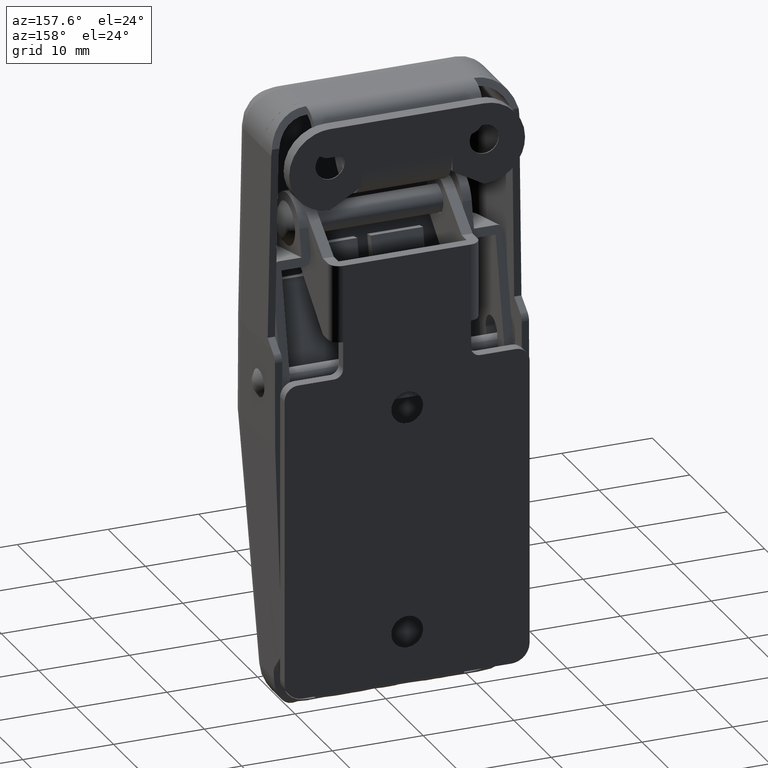
[diagram: clean part render]
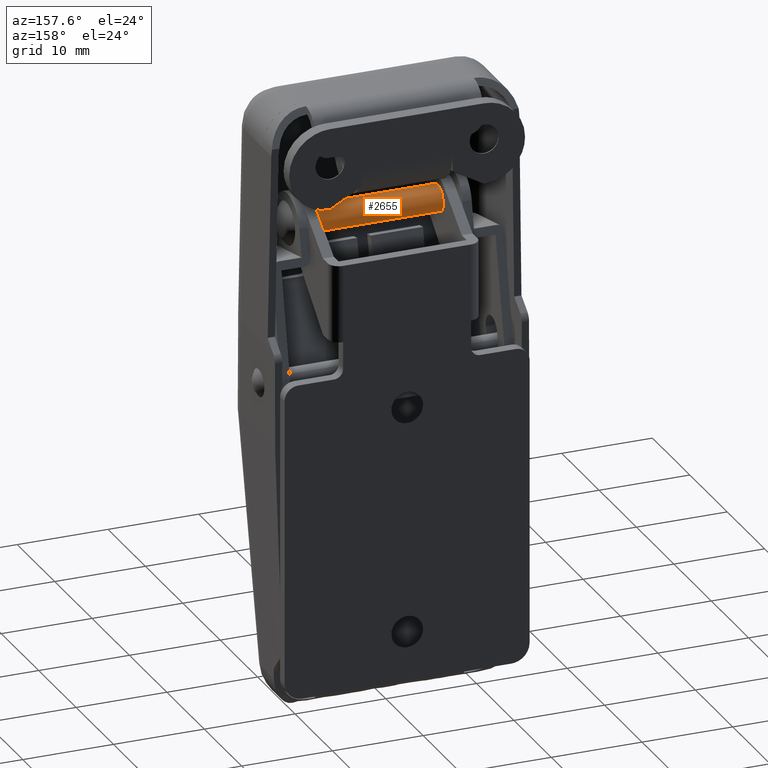
[diagram: same view with one face highlighted and labeled with its STEP entity id]
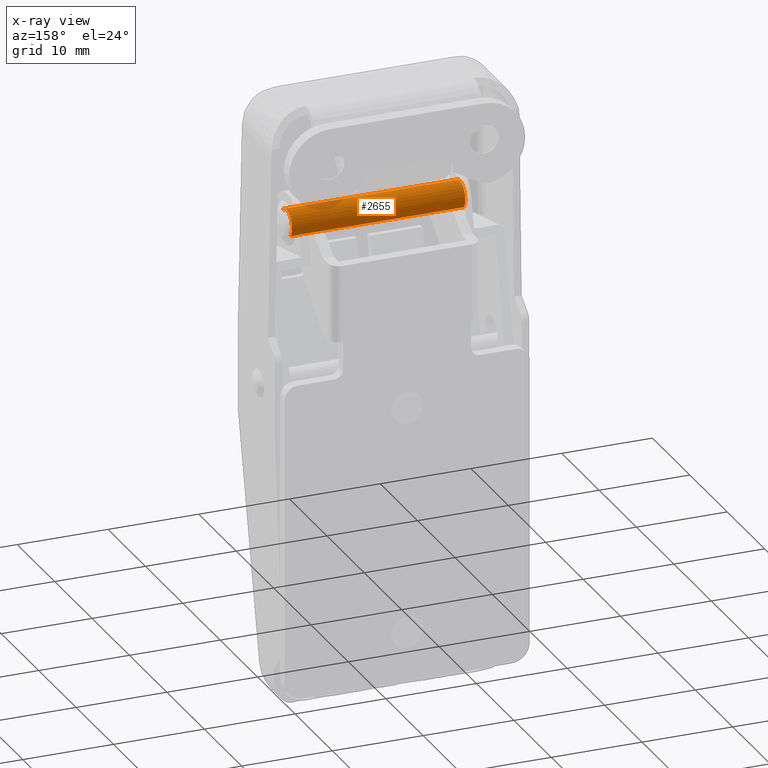
[diagram: x-ray of the same camera — body ghosted, the highlighted face saturated]
A machine part, auxiliary view. The second image highlights one B-rep face of the part: STEP entity #2655.
The next image is the same camera in x-ray: the body ghosted, the highlighted face saturated — about 4% of this face is hidden behind the body in this view.
In plain terms, the highlighted face is a freeform B-spline surface patch.
Its self-contained STEP definition (entity closure, byte-faithful):
#2454=CARTESIAN_POINT('',(-9.499999999934200,-3.285633986032510,22.178790868861189));
#2455=VERTEX_POINT('',#2454);
#2456=CARTESIAN_POINT('',(-9.499999999934200,-1.785633985957821,20.678790915992419));
#2457=VERTEX_POINT('',#2456);
#2458=CARTESIAN_POINT('',(-9.499999999934200,-3.285633986032510,22.178790868861189));
#2459=CARTESIAN_POINT('',(-9.499999999934202,-3.101523840343589,22.178953196326798));
#2460=CARTESIAN_POINT('',(-9.499999999934206,-2.819419191676042,22.126139130698451));
#2461=CARTESIAN_POINT('',(-9.499999999934216,-2.433878845741575,21.932098984238461));
#2462=CARTESIAN_POINT('',(-9.499999999934179,-2.170875079340385,21.705234986768090));
#2463=CARTESIAN_POINT('',(-9.499999999934220,-1.972096145615222,21.422909043485451));
#2464=CARTESIAN_POINT('',(-9.499999999934186,-1.827164079112032,21.095980703721811));
#2465=CARTESIAN_POINT('',(-9.499999999934213,-1.785534220851482,20.838338322912040));
#2466=CARTESIAN_POINT('',(-9.499999999934200,-1.785633985957821,20.678790915992419));
#2467=B_SPLINE_CURVE_WITH_KNOTS('',3,(#2458,#2459,#2460,#2461,#2462,#2463,#2464,#2465,#2466),.UNSPECIFIED.,.F.,.U.,(4,1,1,1,1,1,4),(0.000000082022260,0.552246338075214,0.846781946795954,1.288555580415389,1.583099460860267,1.877644930063315,2.356253590015370),.UNSPECIFIED.);
#2468=EDGE_CURVE('',#2455,#2457,#2467,.T.);
#2470=CARTESIAN_POINT('',(-9.499999999934165,-2.197572421499889,19.646259031128611));
#2471=VERTEX_POINT('',#2470);
#2472=CARTESIAN_POINT('',(-9.499999999934200,-1.785633985957821,20.678790915992419));
#2473=CARTESIAN_POINT('',(-9.499999999934197,-1.785489143771432,20.500827777173480));
#2474=CARTESIAN_POINT('',(-9.499999999934168,-1.854039233733375,20.121338672274788));
#2475=CARTESIAN_POINT('',(-9.499999999934182,-2.058542988621209,19.792400366430240));
#2476=CARTESIAN_POINT('',(-9.499999999934165,-2.197572421499889,19.646259031128611));
#2477=B_SPLINE_CURVE_WITH_KNOTS('',3,(#2472,#2473,#2474,#2475,#2476),.UNSPECIFIED.,.F.,.U.,(4,1,4),(0.000000022170456,0.533842892879499,1.138854059767012),.UNSPECIFIED.);
#2478=EDGE_CURVE('',#2457,#2471,#2477,.T.);
#2505=CARTESIAN_POINT('',(-9.499999999934165,-4.373695550565131,21.711322706444388));
#2506=VERTEX_POINT('',#2505);
#2515=CARTESIAN_POINT('',(-9.499999999934165,-4.373695550565131,21.711322706444388));
#2516=CARTESIAN_POINT('',(-9.499999999934156,-4.303873325916835,21.784918970288231));
#2517=CARTESIAN_POINT('',(-9.499999999934191,-4.139553173976664,21.926168247356259));
#2518=CARTESIAN_POINT('',(-9.499999999934151,-3.780076682515530,22.120092399112782));
#2519=CARTESIAN_POINT('',(-9.499999999934254,-3.475877977551342,22.178977339723360));
#2520=CARTESIAN_POINT('',(-9.499999999934200,-3.285633986032510,22.178790868861189));
#2521=B_SPLINE_CURVE_WITH_KNOTS('',3,(#2515,#2516,#2517,#2518,#2519,#2520),.UNSPECIFIED.,.F.,.U.,(4,1,1,4),(0.000000019230499,0.304349962171008,0.646740907472440,1.217399790996567),.UNSPECIFIED.);
#2522=EDGE_CURVE('',#2506,#2455,#2521,.T.);
#2546=CARTESIAN_POINT('',(9.600000000012580,-2.197572422130067,19.646259031314681));
#2547=VERTEX_POINT('',#2546);
#2548=CARTESIAN_POINT('',(9.600000000012580,-2.197572422130067,19.646259031314681));
#2549=CARTESIAN_POINT('',(-9.499999999934165,-2.197572421499889,19.646259031128611));
#2550=QUASI_UNIFORM_CURVE('',1,(#2548,#2549),.UNSPECIFIED.,.F.,.U.);
#2551=EDGE_CURVE('',#2547,#2471,#2550,.T.);
#2578=CARTESIAN_POINT('',(9.600000000012580,-4.373695549934955,21.711322706258319));
#2579=VERTEX_POINT('',#2578);
#2588=CARTESIAN_POINT('',(9.600000000012580,-4.373695549934955,21.711322706258319));
#2589=CARTESIAN_POINT('',(-9.499999999934165,-4.373695550565131,21.711322706444388));
#2590=QUASI_UNIFORM_CURVE('',1,(#2588,#2589),.UNSPECIFIED.,.F.,.U.);
#2591=EDGE_CURVE('',#2579,#2506,#2590,.T.);
#2598=CARTESIAN_POINT('',(10.077500000011250,-4.373695542180633,21.711322731975720));
#2599=CARTESIAN_POINT('',(10.077500000011250,-3.341163678991411,22.799384288123846));
#2600=CARTESIAN_POINT('',(10.077500000011250,-2.253102122843289,21.766852424934619));
#2601=CARTESIAN_POINT('',(10.077500000011250,-1.165040566695165,20.734320561745403));
#2602=CARTESIAN_POINT('',(10.077500000011250,-2.197572429884387,19.646259005597280));
#2603=CARTESIAN_POINT('',(-9.989437499932839,-4.373695542180633,21.711322731975720));
#2604=CARTESIAN_POINT('',(-9.989437499932839,-3.341163678991411,22.799384288123846));
#2605=CARTESIAN_POINT('',(-9.989437499932839,-2.253102122843289,21.766852424934619));
#2606=CARTESIAN_POINT('',(-9.989437499932839,-1.165040566695165,20.734320561745403));
#2607=CARTESIAN_POINT('',(-9.989437499932839,-2.197572429884387,19.646259005597280));
#2615=(BOUNDED_SURFACE()B_SPLINE_SURFACE(2,1,((#2598,#2603),(#2599,#2604),(#2600,#2605),(#2601,#2606),(#2602,#2607)),.UNSPECIFIED.,.F.,.F.,.U.)B_SPLINE_SURFACE_WITH_KNOTS((3,2,3),(2,2),(0.0,1.570796326794897,3.141592653589793),(0.0,20.066937499944089),.UNSPECIFIED.)GEOMETRIC_REPRESENTATION_ITEM()RATIONAL_B_SPLINE_SURFACE(((1.0,1.0),(0.707106781186548,0.707106781186548),(1.0,1.0),(0.707106781186548,0.707106781186548),(1.0,1.0)))REPRESENTATION_ITEM('')SURFACE());
#2616=ORIENTED_EDGE('',*,*,#2478,.F.);
#2617=ORIENTED_EDGE('',*,*,#2468,.F.);
#2618=ORIENTED_EDGE('',*,*,#2522,.F.);
#2619=ORIENTED_EDGE('',*,*,#2591,.F.);
#2620=CARTESIAN_POINT('',(9.600000000012580,-3.285633986032510,22.178790867690800));
#2621=VERTEX_POINT('',#2620);
#2622=CARTESIAN_POINT('',(9.600000000012580,-4.373695549934955,21.711322706258319));
#2623=CARTESIAN_POINT('',(9.600000000012573,-4.260280362109942,21.830982884451160));
#2624=CARTESIAN_POINT('',(9.600000000012582,-4.044770971961071,21.993486908616141));
#2625=CARTESIAN_POINT('',(9.600000000012571,-3.666035580912269,22.144927426637331));
#2626=CARTESIAN_POINT('',(9.600000000012599,-3.425130129457197,22.178842581395259));
#2627=CARTESIAN_POINT('',(9.600000000012580,-3.285633986032510,22.178790867690800));
#2628=B_SPLINE_CURVE_WITH_KNOTS('',3,(#2622,#2623,#2624,#2625,#2626,#2627),.UNSPECIFIED.,.F.,.U.,(4,1,1,4),(0.000000019230470,0.494574018056895,0.798913952977718,1.217399789985309),.UNSPECIFIED.);
#2629=EDGE_CURVE('',#2579,#2621,#2628,.T.);
#2630=ORIENTED_EDGE('',*,*,#2629,.T.);
#2631=CARTESIAN_POINT('',(9.600000000012580,-1.785633987128213,20.678790915992430));
#2632=VERTEX_POINT('',#2631);
#2633=CARTESIAN_POINT('',(9.600000000012580,-3.285633986032510,22.178790867690800));
#2634=CARTESIAN_POINT('',(9.600000000012605,-3.126091651367181,22.178868640511400));
#2635=CARTESIAN_POINT('',(9.600000000012551,-2.868446263684997,22.137270718000831));
#2636=CARTESIAN_POINT('',(9.600000000012601,-2.473829283929583,21.962425773197690));
#2637=CARTESIAN_POINT('',(9.600000000012583,-2.146522024711767,21.693829996470690));
#2638=CARTESIAN_POINT('',(9.600000000012569,-1.861145088906411,21.243110590328079));
#2639=CARTESIAN_POINT('',(9.600000000012596,-1.785364006077506,20.887456658864391));
#2640=CARTESIAN_POINT('',(9.600000000012580,-1.785633987128213,20.678790915992430));
#2641=B_SPLINE_CURVE_WITH_KNOTS('',3,(#2633,#2634,#2635,#2636,#2637,#2638,#2639,#2640),.UNSPECIFIED.,.F.,.U.,(4,1,1,1,1,4),(0.000000082020927,0.478608741580934,0.773154210570430,1.288555579409783,1.730373090708751,2.356253588176874),.UNSPECIFIED.);
#2642=EDGE_CURVE('',#2621,#2632,#2641,.T.);
#2643=ORIENTED_EDGE('',*,*,#2642,.T.);
#2644=CARTESIAN_POINT('',(9.600000000012580,-1.785633987128213,20.678790915992430));
#2645=CARTESIAN_POINT('',(9.600000000012575,-1.785490949868752,20.500828453859071));
#2646=CARTESIAN_POINT('',(9.600000000012573,-1.854036599087436,20.121337508282650));
#2647=CARTESIAN_POINT('',(9.600000000012587,-2.058540872235715,19.792397128701950));
#2648=CARTESIAN_POINT('',(9.600000000012580,-2.197572422130067,19.646259031314681));
#2649=B_SPLINE_CURVE_WITH_KNOTS('',3,(#2644,#2645,#2646,#2647,#2648),.UNSPECIFIED.,.F.,.U.,(4,1,4),(0.000000022171426,0.533842892707446,1.138854059399396),.UNSPECIFIED.);
#2650=EDGE_CURVE('',#2632,#2547,#2649,.T.);
#2651=ORIENTED_EDGE('',*,*,#2650,.T.);
#2652=ORIENTED_EDGE('',*,*,#2551,.T.);
#2653=EDGE_LOOP('',(#2616,#2617,#2618,#2619,#2630,#2643,#2651,#2652));
#2654=FACE_OUTER_BOUND('',#2653,.T.);
#2655=ADVANCED_FACE('',(#2654),#2615,.T.);